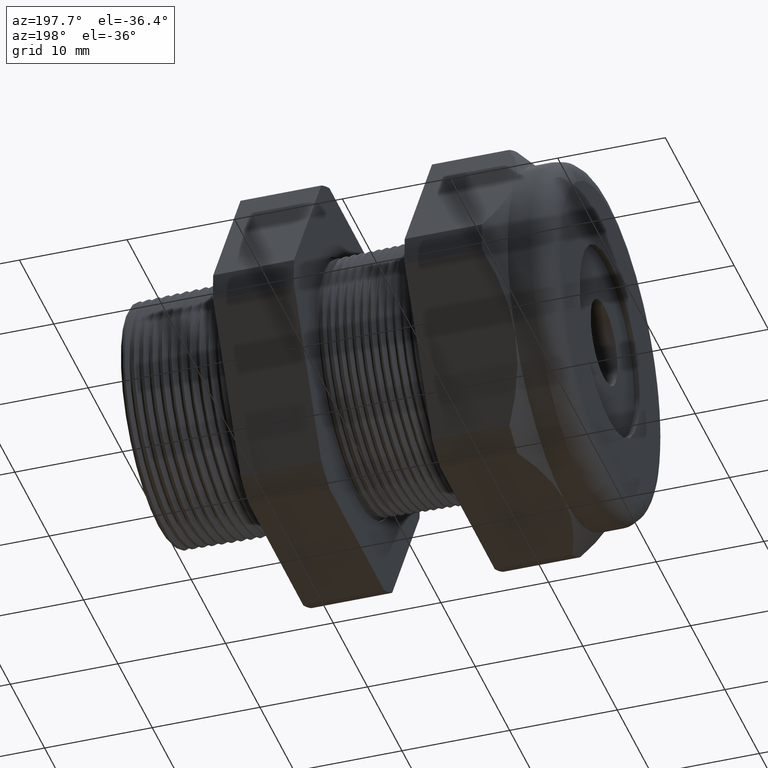
[diagram: clean part render]
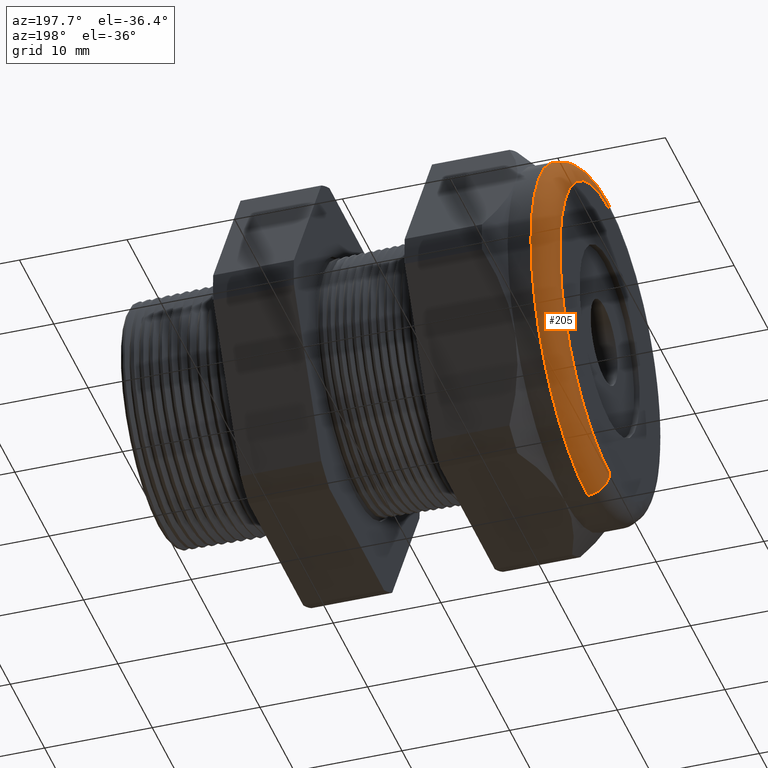
[diagram: same view with one face highlighted and labeled with its STEP entity id]
A machine part, auxiliary view. The second image highlights one B-rep face of the part: STEP entity #205.
In plain terms, the highlighted toroidal blend (fillet) surface has major radius 14.478 mm and minor (blend) radius 2.032 mm.
Its self-contained STEP definition (entity closure, byte-faithful):
#171 = EDGE_CURVE ( 'NONE', #199, #172, #841, .T. ) ;
#172 = VERTEX_POINT ( 'NONE', #836 ) ;
#173 = EDGE_CURVE ( 'NONE', #172, #182, #835, .T. ) ;
#174 = ORIENTED_EDGE ( 'NONE', *, *, #171, .F. ) ;
#179 = ORIENTED_EDGE ( 'NONE', *, *, #173, .F. ) ;
#182 = VERTEX_POINT ( 'NONE', #815 ) ;
#190 = EDGE_CURVE ( 'NONE', #200, #182, #860, .T. ) ;
#198 = ORIENTED_EDGE ( 'NONE', *, *, #190, .T. ) ;
#199 = VERTEX_POINT ( 'NONE', #843 ) ;
#200 = VERTEX_POINT ( 'NONE', #842 ) ;
#201 = EDGE_LOOP ( 'NONE', ( #202, #198, #179, #174 ) ) ;
#202 = ORIENTED_EDGE ( 'NONE', *, *, #203, .F. ) ;
#203 = EDGE_CURVE ( 'NONE', #200, #199, #904, .T. ) ;
#205 = ADVANCED_FACE ( 'NONE', ( #896 ), #894, .T. ) ;
#815 = CARTESIAN_POINT ( 'NONE',  ( -1.529999999999999800, 7.470345474798854000E-017, -0.5699999999999999500 ) ) ;
#831 = DIRECTION ( 'NONE',  ( 0.0000000000000000000, 0.0000000000000000000, 1.000000000000000000 ) ) ;
#832 = DIRECTION ( 'NONE',  ( -1.000000000000000000, 0.0000000000000000000, 0.0000000000000000000 ) ) ;
#833 = CARTESIAN_POINT ( 'NONE',  ( -1.529999999999999800, 0.0000000000000000000, 0.0000000000000000000 ) ) ;
#834 = AXIS2_PLACEMENT_3D ( 'NONE', #833, #832, #831 ) ;
#835 = CIRCLE ( 'NONE', #834, 0.5699999999999999500 ) ;
#836 = CARTESIAN_POINT ( 'NONE',  ( -1.529999999999999800, 0.0000000000000000000, 0.5699999999999999500 ) ) ;
#837 = DIRECTION ( 'NONE',  ( 0.0000000000000000000, 0.0000000000000000000, -1.000000000000000000 ) ) ;
#838 = DIRECTION ( 'NONE',  ( 0.0000000000000000000, -1.000000000000000000, 0.0000000000000000000 ) ) ;
#839 = CARTESIAN_POINT ( 'NONE',  ( -1.449999999999999700, 0.0000000000000000000, 0.5699999999999999500 ) ) ;
#840 = AXIS2_PLACEMENT_3D ( 'NONE', #839, #838, #837 ) ;
#841 = CIRCLE ( 'NONE', #840, 0.07999999999999996000 ) ;
#842 = CARTESIAN_POINT ( 'NONE',  ( -1.449999999999999700, 0.0000000000000000000, -0.6499999999999999100 ) ) ;
#843 = CARTESIAN_POINT ( 'NONE',  ( -1.449999999999999700, 7.960204194457794200E-017, 0.6499999999999999100 ) ) ;
#856 = DIRECTION ( 'NONE',  ( 0.0000000000000000000, -1.224646799147353900E-016, 1.000000000000000000 ) ) ;
#857 = DIRECTION ( 'NONE',  ( 0.0000000000000000000, 1.000000000000000000, 1.224646799147353200E-016 ) ) ;
#858 = CARTESIAN_POINT ( 'NONE',  ( -1.449999999999999700, 6.980486755139912600E-017, -0.5699999999999999500 ) ) ;
#859 = AXIS2_PLACEMENT_3D ( 'NONE', #858, #857, #856 ) ;
#860 = CIRCLE ( 'NONE', #859, 0.07999999999999996000 ) ;
#891 = DIRECTION ( 'NONE',  ( 0.0000000000000000000, 0.0000000000000000000, 1.000000000000000000 ) ) ;
#892 = DIRECTION ( 'NONE',  ( -1.000000000000000000, 0.0000000000000000000, 0.0000000000000000000 ) ) ;
#893 = AXIS2_PLACEMENT_3D ( 'NONE', #895, #892, #891 ) ;
#894 = TOROIDAL_SURFACE ( 'NONE', #893, 0.5699999999999999500, 0.08000000000000000200 ) ;
#895 = CARTESIAN_POINT ( 'NONE',  ( -1.449999999999999700, 0.0000000000000000000, 0.0000000000000000000 ) ) ;
#896 = FACE_OUTER_BOUND ( 'NONE', #201, .T. ) ;
#900 = DIRECTION ( 'NONE',  ( 0.0000000000000000000, 0.0000000000000000000, 1.000000000000000000 ) ) ;
#901 = DIRECTION ( 'NONE',  ( 1.000000000000000000, 0.0000000000000000000, 0.0000000000000000000 ) ) ;
#902 = CARTESIAN_POINT ( 'NONE',  ( -1.449999999999999700, 0.0000000000000000000, 0.0000000000000000000 ) ) ;
#903 = AXIS2_PLACEMENT_3D ( 'NONE', #902, #901, #900 ) ;
#904 = CIRCLE ( 'NONE', #903, 0.6499999999999999100 ) ;